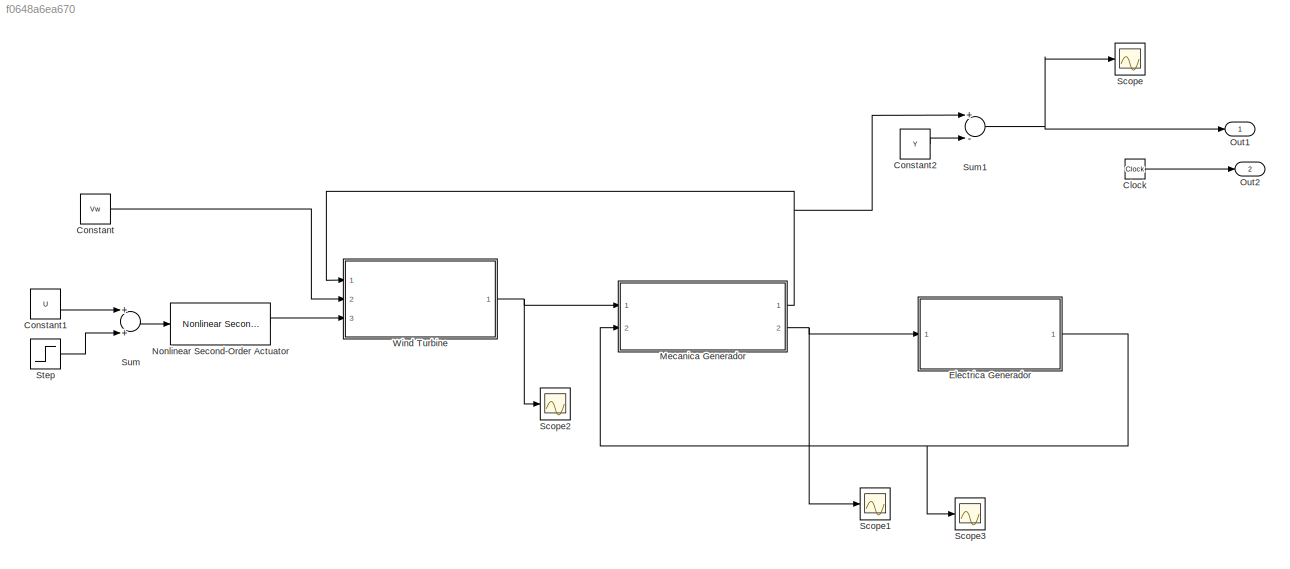
MODEL slx_f0648a6ea670
KIND model
CONFIG AbsTol = auto
CONFIG EnableMultiTasking = on
CONFIG FixedStep = 0.01
CONFIG MaxStep = auto
CONFIG MinStep = auto
CONFIG RelTol = 1e-3
CONFIG SampleTimeConstraint = Unconstrained
CONFIG Solver = ode23s
CONFIG SolverName = ode23s
CONFIG StartTime = 0.0
CONFIG StopTime = 100
BLOCK [Clock] Clock
BLOCK [Constant] Constant
  Value = Vw
BLOCK [Constant] Constant1
  Value = U
BLOCK [Constant] Constant2
  Value = Y
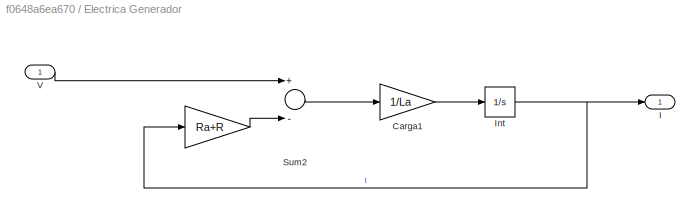
BLOCK [SubSystem] Electrica Generador
  Ports = [1, 1]
  RequestExecContextInheritance = off
BLOCK [Gain] Electrica Generador/ 
  Gain = Ra+R
  OutDataTypeStr = Inherit: Inherit via internal rule
  ParamDataTypeStr = Inherit: Inherit via internal rule
  SaturateOnIntegerOverflow = off
BLOCK [Gain] Electrica Generador/Carga1
  Gain = 1/La
  OutDataTypeStr = Inherit: Inherit via internal rule
  ParamDataTypeStr = Inherit: Inherit via internal rule
  SaturateOnIntegerOverflow = off
BLOCK [Outport] Electrica Generador/I
  IconDisplay = Port number
  VectorParamsAs1DForOutWhenUnconnected = off
BLOCK [Integrator] Electrica Generador/Int
  InitialCondition = X(2)
  Ports = [1, 1]
BLOCK [Sum] Electrica Generador/Sum2
  InputSameDT = off
  Inputs = +-
  OutDataTypeStr = Inherit: Inherit via internal rule
  Ports = [2, 1]
  SaturateOnIntegerOverflow = off
BLOCK [Inport] Electrica Generador/V
  IconDisplay = Port number
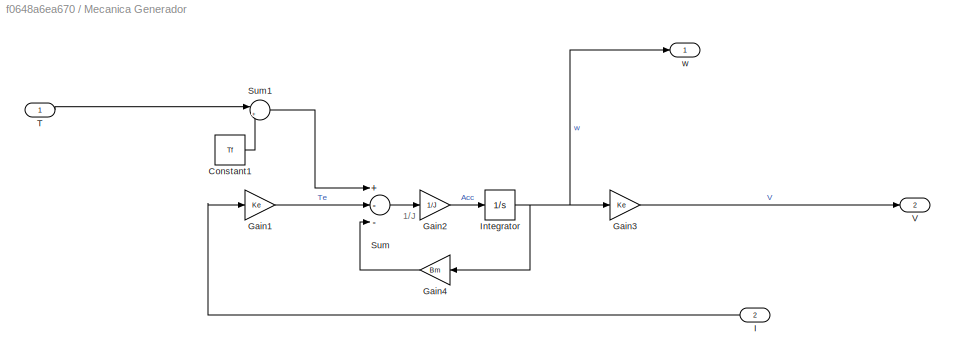
BLOCK [SubSystem] Mecanica Generador
  Ports = [2, 2]
  RequestExecContextInheritance = off
BLOCK [Constant] Mecanica Generador/Constant1
  Value = Tf
BLOCK [Gain] Mecanica Generador/Gain1
  Gain = Ke
BLOCK [Gain] Mecanica Generador/Gain2
  Gain = 1/J
BLOCK [Gain] Mecanica Generador/Gain3
  Gain = Ke
BLOCK [Gain] Mecanica Generador/Gain4
  Gain = Bm
BLOCK [Inport] Mecanica Generador/I
  IconDisplay = Port number
  Port = 2
BLOCK [Integrator] Mecanica Generador/Integrator
  InitialCondition = X(1)
  Ports = [1, 1]
BLOCK [Sum] Mecanica Generador/Sum
  Inputs = +--
  Ports = [3, 1]
BLOCK [Sum] Mecanica Generador/Sum1
  IconShape = round
  InputSameDT = off
  Inputs = |+-
  OutDataTypeStr = Inherit: Inherit via internal rule
  Ports = [2, 1]
  SaturateOnIntegerOverflow = off
BLOCK [Inport] Mecanica Generador/T
  IconDisplay = Port number
BLOCK [Outport] Mecanica Generador/V
  IconDisplay = Port number
  Port = 2
  VectorParamsAs1DForOutWhenUnconnected = off
BLOCK [Outport] Mecanica Generador/w
  IconDisplay = Port number
  VectorParamsAs1DForOutWhenUnconnected = off
BLOCK [Reference] Nonlinear Second-Order Actuator  REF=aerolibactuator/Nonlinear Second-Order Actuator
  Ports = [1, 1]
  SourceBlock = aerolibactuator/Nonlinear Second-Order Actuator
  SourceProductBaseCode = AE
  SourceProductName = Aerospace Blockset
  SourceType = NonlinearSecondOrderActuator
BLOCK [Outport] Out1
  IconDisplay = Port number
  VectorParamsAs1DForOutWhenUnconnected = off
BLOCK [Outport] Out2
  IconDisplay = Port number
  Port = 2
  VectorParamsAs1DForOutWhenUnconnected = off
BLOCK [Scope] Scope
  Floating = off
  NumInputPorts = 1
  Ports = [1]
  ScopeSpecificationString = Simulink.scopes.TimeScopeBlockCfg('CurrentConfiguration', extmgr.ConfigurationSet(extmgr.Configuration('Core','General UI',true),extmgr.Configuration('Core','Source UI',true),extmgr.Configuration('Sources','WiredSimulink',true),extmgr.Configuration('Visuals','Time Domain',true,'SerializedDisplays',{struct('MinYLimReal','-0.27485','MaxYLimReal','2.47362','YLabelReal','','MinYLimMag','0.00000','MaxY...<+1354ch>
BLOCK [Scope] Scope1
  Floating = off
  NumInputPorts = 1
  Ports = [1]
  ScopeSpecificationString = Simulink.scopes.TimeScopeBlockCfg('CurrentConfiguration', extmgr.ConfigurationSet(extmgr.Configuration('Core','General UI',true),extmgr.Configuration('Core','Source UI',true),extmgr.Configuration('Sources','WiredSimulink',true,'DataLoggingVariableName','ScopeData1'),extmgr.Configuration('Visuals','Time Domain',true,'SerializedDisplays',{struct('MinYLimReal','-7.15888','MaxYLimReal','78.14694','YLa...<+1413ch>
BLOCK [Scope] Scope2
  Floating = off
  NumInputPorts = 1
  Ports = [1]
  ScopeSpecificationString = Simulink.scopes.TimeScopeBlockCfg('CurrentConfiguration', extmgr.ConfigurationSet(extmgr.Configuration('Core','General UI',true),extmgr.Configuration('Core','Source UI',true),extmgr.Configuration('Sources','WiredSimulink',true,'DataLoggingVariableName','ScopeData2'),extmgr.Configuration('Visuals','Time Domain',true,'SerializedDisplays',{struct('MinYLimReal','2.7076','MaxYLimReal','29.18729','YLabe...<+1399ch>
BLOCK [Scope] Scope3
  Floating = off
  NumInputPorts = 1
  Ports = [1]
  ScopeSpecificationString = Simulink.scopes.TimeScopeBlockCfg('CurrentConfiguration', extmgr.ConfigurationSet(extmgr.Configuration('Core','General UI',true),extmgr.Configuration('Core','Source UI',true),extmgr.Configuration('Sources','WiredSimulink',true,'DataLoggingVariableName','ScopeData3'),extmgr.Configuration('Visuals','Time Domain',true,'SerializedDisplays',{struct('MinYLimReal','-0.69174','MaxYLimReal','6.22563','YLab...<+1408ch>
BLOCK [Step] Step
  SampleTime = 0
  Time = 0
BLOCK [Sum] Sum
  Ports = [2, 1]
BLOCK [Sum] Sum1
  Inputs = +-
  Ports = [2, 1]
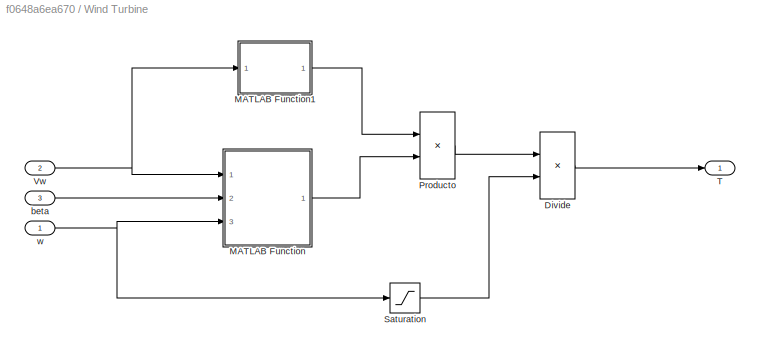
BLOCK [SubSystem] Wind Turbine
  Ports = [3, 1]
  RequestExecContextInheritance = off
BLOCK [Product] Wind Turbine/Divide
  InputSameDT = off
  Inputs = */
  OutDataTypeStr = Inherit: Inherit via internal rule
  Ports = [2, 1]
  RndMeth = Floor
  SaturateOnIntegerOverflow = off
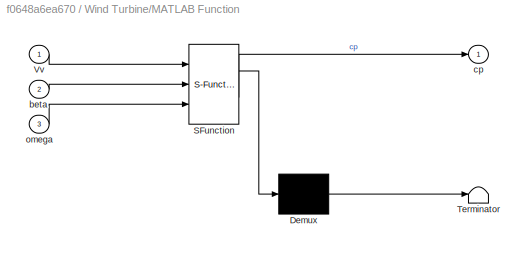
BLOCK [SubSystem] Wind Turbine/MATLAB Function
  ErrorFcn = Stateflow.Translate.translate
  PermitHierarchicalResolution = ExplicitOnly
  Ports = [3, 1]
  RequestExecContextInheritance = off
  SFBlockType = MATLAB Function
  TreatAsAtomicUnit = on
BLOCK [Demux] Wind Turbine/MATLAB Function/ Demux 
  Outputs = 1
  Ports = [1, 1]
BLOCK [S-Function] Wind Turbine/MATLAB Function/ SFunction 
  EnableBusSupport = on
  FunctionName = sf_sfun
  Parameters = Rpala,c1,c2,c3,c4,c5,c6
  PortCounts = [3 2]
  Ports = [3, 2]
  SFcnIsStateOwnerBlock = off
  SFunctionDeploymentMode = off
  Tag = Stateflow S-Function 2
BLOCK [Terminator] Wind Turbine/MATLAB Function/ Terminator 
BLOCK [Inport] Wind Turbine/MATLAB Function/Vv
  IconDisplay = Port number
BLOCK [Inport] Wind Turbine/MATLAB Function/beta
  IconDisplay = Port number
  Port = 2
BLOCK [Outport] Wind Turbine/MATLAB Function/cp
  IconDisplay = Port number
  VectorParamsAs1DForOutWhenUnconnected = off
BLOCK [Inport] Wind Turbine/MATLAB Function/omega
  IconDisplay = Port number
  Port = 3
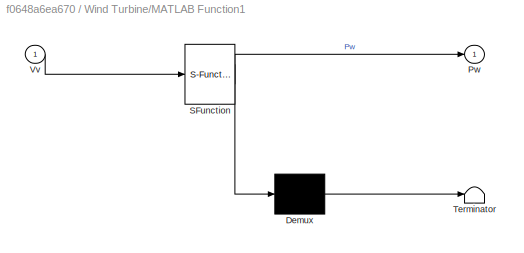
BLOCK [SubSystem] Wind Turbine/MATLAB Function1
  ErrorFcn = Stateflow.Translate.translate
  PermitHierarchicalResolution = ExplicitOnly
  Ports = [1, 1]
  RequestExecContextInheritance = off
  SFBlockType = MATLAB Function
  TreatAsAtomicUnit = on
BLOCK [Demux] Wind Turbine/MATLAB Function1/ Demux 
  Outputs = 1
  Ports = [1, 1]
BLOCK [S-Function] Wind Turbine/MATLAB Function1/ SFunction 
  EnableBusSupport = on
  FunctionName = sf_sfun
  Parameters = Rho,Rpala
  PortCounts = [1 2]
  Ports = [1, 2]
  SFcnIsStateOwnerBlock = off
  SFunctionDeploymentMode = off
  Tag = Stateflow S-Function 1
BLOCK [Terminator] Wind Turbine/MATLAB Function1/ Terminator 
BLOCK [Outport] Wind Turbine/MATLAB Function1/Pw
  IconDisplay = Port number
  VectorParamsAs1DForOutWhenUnconnected = off
BLOCK [Inport] Wind Turbine/MATLAB Function1/Vv
  IconDisplay = Port number
BLOCK [Product] Wind Turbine/Producto
  InputSameDT = off
  Inputs = **
  OutDataTypeStr = Inherit: Inherit via internal rule
  Ports = [2, 1]
  RndMeth = Floor
  SaturateOnIntegerOverflow = off
BLOCK [Saturate] Wind Turbine/Saturation
  InputPortMap = u0
  LowerLimit = 0.1
  Ports = [1, 1]
  UpperLimit = 1000
BLOCK [Outport] Wind Turbine/T
  IconDisplay = Port number
  VectorParamsAs1DForOutWhenUnconnected = off
BLOCK [Inport] Wind Turbine/Vw
  IconDisplay = Port number
  Port = 2
BLOCK [Inport] Wind Turbine/beta
  IconDisplay = Port number
  Port = 3
BLOCK [Inport] Wind Turbine/w
  IconDisplay = Port number
ANNOTATION Mecanica Generador: 1/J
LINE Clock:1 -> Out2:1
LINE Constant1:1 -> Sum:1
LINE Constant2:1 -> Sum1:2
LINE Constant:1 -> Wind Turbine:2
LINE Electrica Generador/ :1 -> Electrica Generador/Sum2:2
LINE Electrica Generador/Carga1:1 -> Electrica Generador/Int:1
NET Electrica Generador/Int:1 -> Electrica Generador/ :1, Electrica Generador/I:1
LINE Electrica Generador/Sum2:1 -> Electrica Generador/Carga1:1
LINE Electrica Generador/V:1 -> Electrica Generador/Sum2:1
NET Electrica Generador:1 -> Mecanica Generador:2, Scope3:1
LINE Mecanica Generador/Constant1:1 -> Mecanica Generador/Sum1:2
LINE Mecanica Generador/Gain1:1 -> Mecanica Generador/Sum:2
LINE Mecanica Generador/Gain2:1 -> Mecanica Generador/Integrator:1
LINE Mecanica Generador/Gain3:1 -> Mecanica Generador/V:1
LINE Mecanica Generador/Gain4:1 -> Mecanica Generador/Sum:3
LINE Mecanica Generador/I:1 -> Mecanica Generador/Gain1:1
NET Mecanica Generador/Integrator:1 -> Mecanica Generador/Gain3:1, Mecanica Generador/Gain4:1, Mecanica Generador/w:1
LINE Mecanica Generador/Sum1:1 -> Mecanica Generador/Sum:1
LINE Mecanica Generador/Sum:1 -> Mecanica Generador/Gain2:1
LINE Mecanica Generador/T:1 -> Mecanica Generador/Sum1:1
NET Mecanica Generador:1 -> Sum1:1, Wind Turbine:1
NET Mecanica Generador:2 -> Electrica Generador:1, Scope1:1
LINE Nonlinear Second-Order Actuator:1 -> Wind Turbine:3
LINE Step:1 -> Sum:2
NET Sum1:1 -> Out1:1, Scope:1
LINE Sum:1 -> Nonlinear Second-Order Actuator:1
LINE Wind Turbine/Divide:1 -> Wind Turbine/T:1
LINE Wind Turbine/MATLAB Function1:1 -> Wind Turbine/Producto:1
LINE Wind Turbine/MATLAB Function:1 -> Wind Turbine/Producto:2
LINE Wind Turbine/Producto:1 -> Wind Turbine/Divide:1
LINE Wind Turbine/Saturation:1 -> Wind Turbine/Divide:2
NET Wind Turbine/Vw:1 -> Wind Turbine/MATLAB Function1:1, Wind Turbine/MATLAB Function:1
LINE Wind Turbine/beta:1 -> Wind Turbine/MATLAB Function:2
NET Wind Turbine/w:1 -> Wind Turbine/MATLAB Function:3, Wind Turbine/Saturation:1
NET Wind Turbine:1 -> Mecanica Generador:1, Scope2:1
note: NET lines group one-source signal fan-out (src -> all destinations, sorted); 1:1 wires keep LINE
CHART Wind Turbine/MATLAB Function1 states=1 transitions=1
  STATE_LABEL 'eML_blk_kernel()'
  STATE_LABEL 'SCRIPT:\nfunction Pw = Pw(Vv,Rho,Rpala)\n%#codegen\n\nPw=0.5*Rho*pi()*Rpala^2*Vv^3;'
CHART Wind Turbine/MATLAB Function states=1 transitions=1
  STATE_LABEL 'eML_blk_kernel()'
  STATE_LABEL 'SCRIPT:\nfunction cp = Cp(Vv,beta,omega,Rpala,c1,c2,c3,c4,c5,c6)\n%#codegen\nbeta=-beta;\nlanda=omega*Rpala/Vv;\nlandai=1/(1/(landa+0.08*beta)-0.035/(1+beta^3));\ncp=c1*(c2/landai-c3*beta-c4)*exp(-c5/landai)+c6*landa;\n\n\n'
